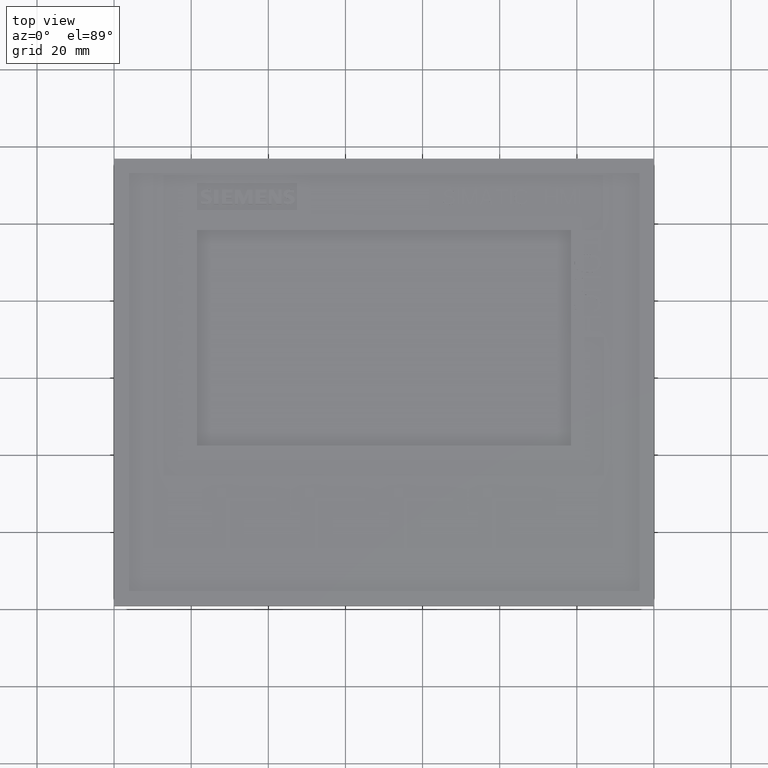
[diagram: clean part render]
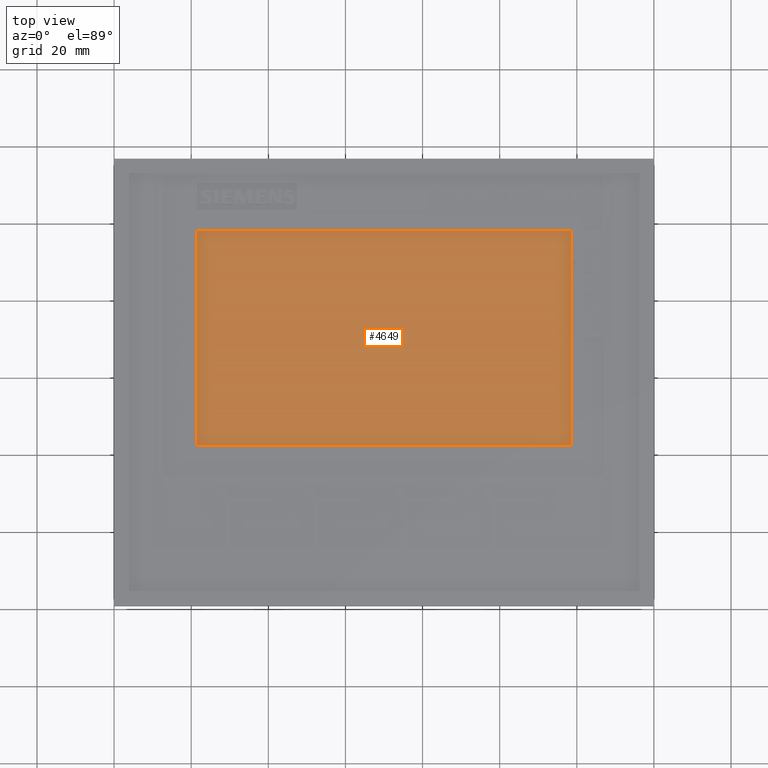
[diagram: same view with one face highlighted and labeled with its STEP entity id]
A machine part, top view. The second image highlights one B-rep face of the part: STEP entity #4649.
In plain terms, the highlighted planar face has unit normal (0, 0, -1).
Its self-contained STEP definition (entity closure, byte-faithful):
#4649=ADVANCED_FACE('',(#8939),#6882,.F.);
#6882=PLANE('',#44793);
#8939=FACE_OUTER_BOUND('',#11218,.T.);
#11218=EDGE_LOOP('',(#16067,#16068,#16069,#16070));
#16067=ORIENTED_EDGE('',*,*,#29732,.F.);
#16068=ORIENTED_EDGE('',*,*,#29740,.F.);
#16069=ORIENTED_EDGE('',*,*,#29738,.F.);
#16070=ORIENTED_EDGE('',*,*,#29736,.F.);
#25456=VERTEX_POINT('',#59765);
#25457=VERTEX_POINT('',#59767);
#25458=VERTEX_POINT('',#59777);
#25459=VERTEX_POINT('',#59781);
#29732=EDGE_CURVE('',#25456,#25457,#35148,.T.);
#29736=EDGE_CURVE('',#25457,#25458,#35152,.T.);
#29738=EDGE_CURVE('',#25458,#25459,#35154,.T.);
#29740=EDGE_CURVE('',#25459,#25456,#35156,.T.);
#35148=LINE('',#59766,#40056);
#35152=LINE('',#59776,#40060);
#35154=LINE('',#59780,#40062);
#35156=LINE('',#59784,#40064);
#40056=VECTOR('',#49200,1.);
#40060=VECTOR('',#49214,1.);
#40062=VECTOR('',#49218,1.);
#40064=VECTOR('',#49222,1.);
#44793=AXIS2_PLACEMENT_3D('',#59786,#49225,#49226);
#49200=DIRECTION('',(0.,1.,0.));
#49214=DIRECTION('',(1.,-2.28817606064542E-015,0.));
#49218=DIRECTION('',(0.,-1.,0.));
#49222=DIRECTION('',(-1.,2.35968156254059E-015,0.));
#49225=DIRECTION('',(0.,0.,-1.));
#49226=DIRECTION('',(-1.,0.,0.));
#59765=CARTESIAN_POINT('',(-48.52,-39.39,-1.0766));
#59766=CARTESIAN_POINT('',(-48.52,-39.39,-1.0766));
#59767=CARTESIAN_POINT('',(-48.52,16.47,-1.0766));
#59776=CARTESIAN_POINT('',(-48.52,16.47,-1.0766));
#59777=CARTESIAN_POINT('',(48.52,16.4699999999998,-1.0766));
#59780=CARTESIAN_POINT('',(48.52,16.4699999999998,-1.0766));
#59781=CARTESIAN_POINT('',(48.52,-39.3900000000002,-1.0766));
#59784=CARTESIAN_POINT('',(48.52,-39.3900000000002,-1.0766));
#59786=CARTESIAN_POINT('',(-48.52,16.47,-1.0766));